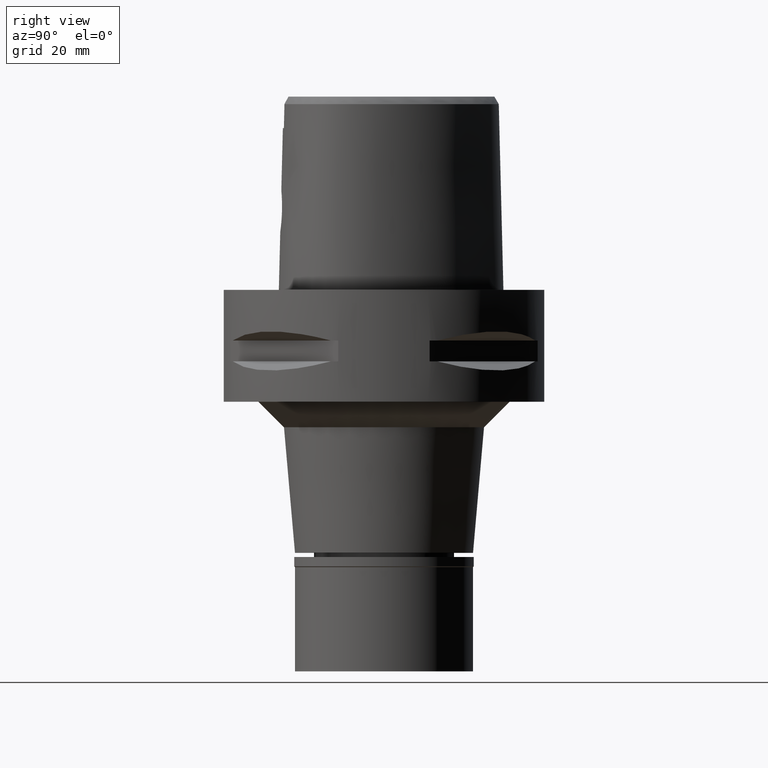
[diagram: clean part render]
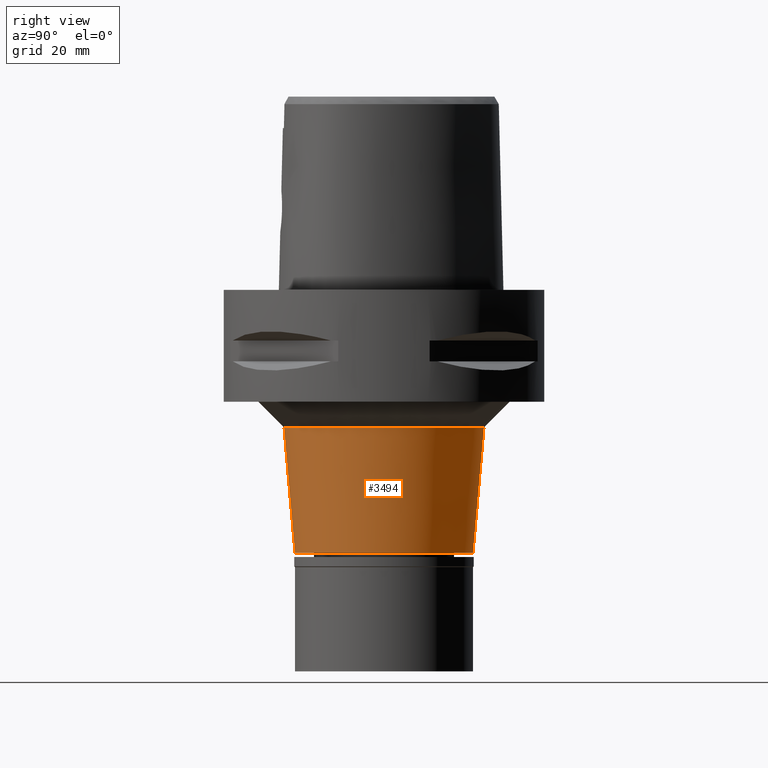
[diagram: same view with one face highlighted and labeled with its STEP entity id]
A machine part, right view. The second image highlights one B-rep face of the part: STEP entity #3494.
In plain terms, the highlighted conical surface has half-angle 5 deg.
Its self-contained STEP definition (entity closure, byte-faithful):
#134 = VERTEX_POINT ( 'NONE', #4239 ) ;
#261 = VECTOR ( 'NONE', #1185, 1000.000000000000000 ) ;
#507 = FACE_OUTER_BOUND ( 'NONE', #1450, .T. ) ;
#510 = VECTOR ( 'NONE', #2883, 1000.000000000000000 ) ;
#645 = EDGE_CURVE ( 'NONE', #134, #3080, #1624, .T. ) ;
#686 = CARTESIAN_POINT ( 'NONE',  ( 0.0000000000000000000, 19.66096998909000249, -27.00000000000000000 ) ) ;
#875 = VERTEX_POINT ( 'NONE', #4195 ) ;
#1120 = CARTESIAN_POINT ( 'NONE',  ( 0.0000000000000000000, 0.0000000000000000000, -51.70000000000000284 ) ) ;
#1146 = DIRECTION ( 'NONE',  ( 0.0000000000000000000, -1.000000000000000000, 0.0000000000000000000 ) ) ;
#1185 = DIRECTION ( 'NONE',  ( 0.0000000000000000000, 0.08715574274762423468, -0.9961946980917484318 ) ) ;
#1204 = EDGE_CURVE ( 'NONE', #2058, #875, #4709, .T. ) ;
#1221 = CARTESIAN_POINT ( 'NONE',  ( 0.0000000000000000000, 0.0000000000000000000, -39.35000000000000142 ) ) ;
#1448 = ORIENTED_EDGE ( 'NONE', *, *, #645, .F. ) ;
#1450 = EDGE_LOOP ( 'NONE', ( #1448, #3339, #3551, #1740 ) ) ;
#1601 = CONICAL_SURFACE ( 'NONE', #3173, 18.58048499454999813, 0.08726646259969973729 ) ;
#1624 = CIRCLE ( 'NONE', #2184, 19.66096998909999982 ) ;
#1740 = ORIENTED_EDGE ( 'NONE', *, *, #3800, .F. ) ;
#1828 = DIRECTION ( 'NONE',  ( 0.0000000000000000000, 0.0000000000000000000, 1.000000000000000000 ) ) ;
#1882 = CARTESIAN_POINT ( 'NONE',  ( 0.0000000000000000000, 0.0000000000000000000, -27.00000000000000000 ) ) ;
#2006 = DIRECTION ( 'NONE',  ( 0.0000000000000000000, 1.000000000000000000, 0.0000000000000000000 ) ) ;
#2058 = VERTEX_POINT ( 'NONE', #4151 ) ;
#2128 = LINE ( 'NONE', #3259, #510 ) ;
#2184 = AXIS2_PLACEMENT_3D ( 'NONE', #1882, #1828, #4055 ) ;
#2362 = DIRECTION ( 'NONE',  ( 0.0000000000000000000, 0.0000000000000000000, 1.000000000000000000 ) ) ;
#2777 = EDGE_CURVE ( 'NONE', #134, #2058, #4858, .T. ) ;
#2883 = DIRECTION ( 'NONE',  ( 0.0000000000000000000, -0.08715574274762423468, -0.9961946980917484318 ) ) ;
#3055 = CARTESIAN_POINT ( 'NONE',  ( 0.0000000000000000000, -19.66096998909000249, -27.00000000000000000 ) ) ;
#3080 = VERTEX_POINT ( 'NONE', #686 ) ;
#3173 = AXIS2_PLACEMENT_3D ( 'NONE', #1221, #2362, #2006 ) ;
#3259 = CARTESIAN_POINT ( 'NONE',  ( 0.0000000000000000000, 19.66096998909000249, -27.00000000000000000 ) ) ;
#3339 = ORIENTED_EDGE ( 'NONE', *, *, #2777, .T. ) ;
#3494 = ADVANCED_FACE ( 'NONE', ( #507 ), #1601, .T. ) ;
#3551 = ORIENTED_EDGE ( 'NONE', *, *, #1204, .T. ) ;
#3770 = AXIS2_PLACEMENT_3D ( 'NONE', #1120, #4157, #1146 ) ;
#3800 = EDGE_CURVE ( 'NONE', #3080, #875, #2128, .T. ) ;
#4055 = DIRECTION ( 'NONE',  ( 0.0000000000000000000, -1.000000000000000000, 0.0000000000000000000 ) ) ;
#4151 = CARTESIAN_POINT ( 'NONE',  ( 0.0000000000000000000, -17.50000000000000000, -51.70000000000000284 ) ) ;
#4157 = DIRECTION ( 'NONE',  ( 0.0000000000000000000, 0.0000000000000000000, 1.000000000000000000 ) ) ;
#4195 = CARTESIAN_POINT ( 'NONE',  ( 0.0000000000000000000, 17.50000000000000000, -51.70000000000000284 ) ) ;
#4239 = CARTESIAN_POINT ( 'NONE',  ( 0.0000000000000000000, -19.66096998909000249, -27.00000000000000000 ) ) ;
#4709 = CIRCLE ( 'NONE', #3770, 17.50000000000000000 ) ;
#4858 = LINE ( 'NONE', #3055, #261 ) ;